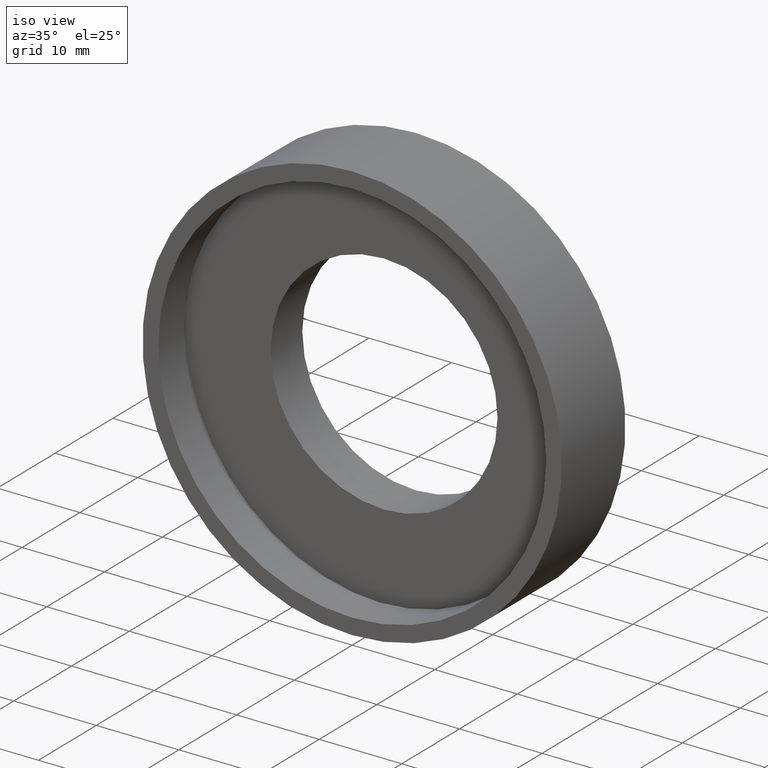
[diagram: clean part render]
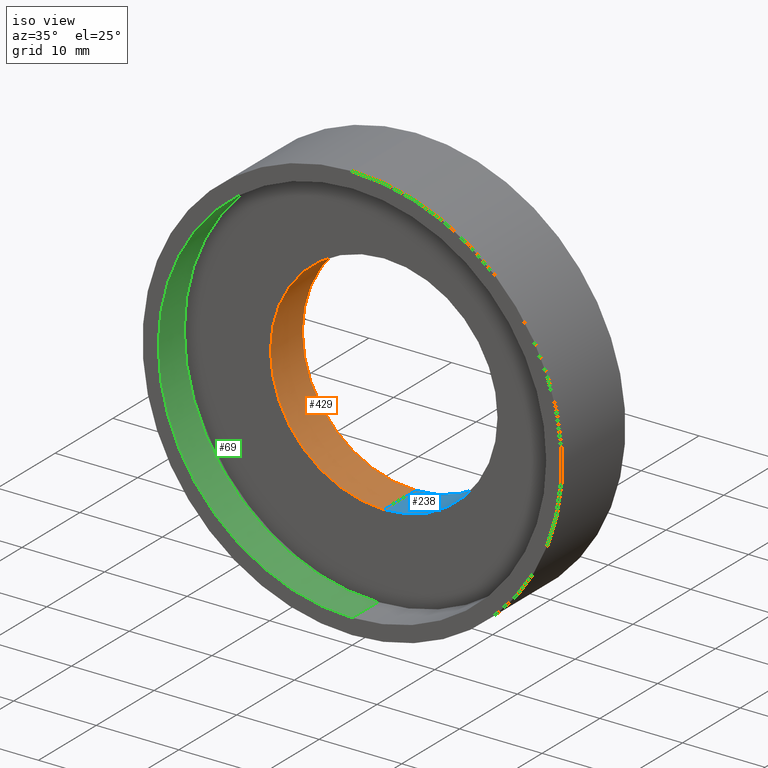
[diagram: same view with three faces highlighted in distinct colors, each labeled with its STEP entity id]
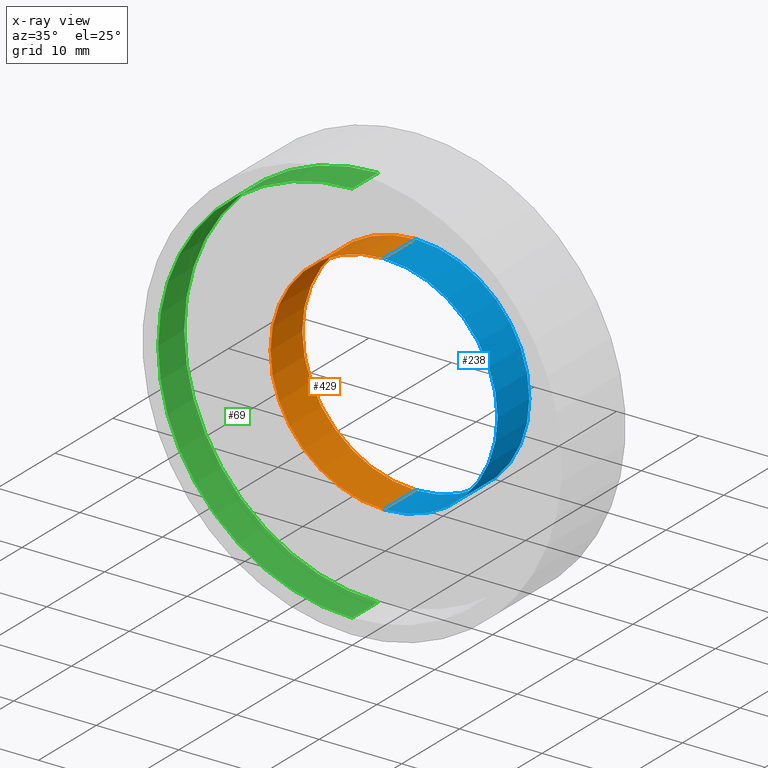
[diagram: x-ray of the same camera — body ghosted, the three highlighted faces saturated]
A machine part, iso view with three faces highlighted in distinct colors.
The next image is the same camera in x-ray (body ghosted, the three faces saturated) — at least one of them is partly hidden behind the body in this view.
Their STEP definitions:

[orange] entity #429 — the highlighted cylindrical surface (partial cylindrical patch) has radius 13.75 mm, axis along (-0, 1, -0).
#18 = DIRECTION ( 'NONE',  ( 0.0000000000000000000, 0.0000000000000000000, 1.000000000000000000 ) ) ;
#84 = VERTEX_POINT ( 'NONE', #353 ) ;
#96 = VERTEX_POINT ( 'NONE', #133 ) ;
#104 = DIRECTION ( 'NONE',  ( -0.0000000000000000000, 1.000000000000000000, -0.0000000000000000000 ) ) ;
#133 = CARTESIAN_POINT ( 'NONE',  ( 0.0000000000000000000, 5.499999999999998200, 13.75000000000000500 ) ) ;
#139 = AXIS2_PLACEMENT_3D ( 'NONE', #153, #379, #408 ) ;
#148 = AXIS2_PLACEMENT_3D ( 'NONE', #205, #349, #18 ) ;
#153 = CARTESIAN_POINT ( 'NONE',  ( 0.0000000000000000000, 5.499999999999998200, 0.0000000000000000000 ) ) ;
#196 = LINE ( 'NONE', #240, #201 ) ;
#201 = VECTOR ( 'NONE', #280, 1000.000000000000000 ) ;
#205 = CARTESIAN_POINT ( 'NONE',  ( 0.0000000000000000000, 60.02082041425541100, 0.0000000000000000000 ) ) ;
#224 = ORIENTED_EDGE ( 'NONE', *, *, #270, .T. ) ;
#231 = AXIS2_PLACEMENT_3D ( 'NONE', #428, #402, #404 ) ;
#232 = VERTEX_POINT ( 'NONE', #291 ) ;
#237 = ORIENTED_EDGE ( 'NONE', *, *, #262, .T. ) ;
#240 = CARTESIAN_POINT ( 'NONE',  ( 0.0000000000000000000, 60.02082041425541100, 13.75000000000000500 ) ) ;
#244 = CIRCLE ( 'NONE', #139, 13.75000000000000500 ) ;
#254 = ORIENTED_EDGE ( 'NONE', *, *, #409, .F. ) ;
#255 = CYLINDRICAL_SURFACE ( 'NONE', #148, 13.75000000000000500 ) ;
#261 = CARTESIAN_POINT ( 'NONE',  ( 0.0000000000000000000, 10.99999999999999600, 13.75000000000000700 ) ) ;
#262 = EDGE_CURVE ( 'NONE', #232, #84, #326, .T. ) ;
#267 = VECTOR ( 'NONE', #104, 1000.000000000000000 ) ;
#270 = EDGE_CURVE ( 'NONE', #84, #335, #356, .T. ) ;
#272 = FACE_OUTER_BOUND ( 'NONE', #415, .T. ) ;
#280 = DIRECTION ( 'NONE',  ( -0.0000000000000000000, 1.000000000000000000, -0.0000000000000000000 ) ) ;
#291 = CARTESIAN_POINT ( 'NONE',  ( 1.683889348827611400E-015, 5.499999999999998200, -13.75000000000000500 ) ) ;
#299 = CARTESIAN_POINT ( 'NONE',  ( 1.683889348827611400E-015, 60.02082041425541100, -13.75000000000000500 ) ) ;
#326 = LINE ( 'NONE', #299, #267 ) ;
#328 = ORIENTED_EDGE ( 'NONE', *, *, #366, .F. ) ;
#335 = VERTEX_POINT ( 'NONE', #261 ) ;
#349 = DIRECTION ( 'NONE',  ( -0.0000000000000000000, 1.000000000000000000, -0.0000000000000000000 ) ) ;
#353 = CARTESIAN_POINT ( 'NONE',  ( 1.683889348827611800E-015, 10.99999999999999600, -13.75000000000000900 ) ) ;
#356 = CIRCLE ( 'NONE', #231, 13.75000000000000700 ) ;
#366 = EDGE_CURVE ( 'NONE', #232, #96, #244, .T. ) ;
#379 = DIRECTION ( 'NONE',  ( -0.0000000000000000000, 1.000000000000000000, -0.0000000000000000000 ) ) ;
#402 = DIRECTION ( 'NONE',  ( -0.0000000000000000000, 1.000000000000000000, -0.0000000000000000000 ) ) ;
#404 = DIRECTION ( 'NONE',  ( 0.0000000000000000000, 0.0000000000000000000, 1.000000000000000000 ) ) ;
#408 = DIRECTION ( 'NONE',  ( 0.0000000000000000000, 0.0000000000000000000, 1.000000000000000000 ) ) ;
#409 = EDGE_CURVE ( 'NONE', #96, #335, #196, .T. ) ;
#415 = EDGE_LOOP ( 'NONE', ( #328, #237, #224, #254 ) ) ;
#428 = CARTESIAN_POINT ( 'NONE',  ( 0.0000000000000000000, 10.99999999999999600, 0.0000000000000000000 ) ) ;
#429 = ADVANCED_FACE ( 'NONE', ( #272 ), #255, .F. ) ;

[blue] entity #238 — the highlighted cylindrical surface (partial cylindrical patch) has radius 13.75 mm, axis along (-0, 1, -0).
#26 = DIRECTION ( 'NONE',  ( 0.0000000000000000000, 0.0000000000000000000, 1.000000000000000000 ) ) ;
#30 = ORIENTED_EDGE ( 'NONE', *, *, #173, .F. ) ;
#36 = CYLINDRICAL_SURFACE ( 'NONE', #208, 13.75000000000000500 ) ;
#40 = DIRECTION ( 'NONE',  ( 0.0000000000000000000, 0.0000000000000000000, 1.000000000000000000 ) ) ;
#51 = EDGE_LOOP ( 'NONE', ( #386, #30, #344, #117 ) ) ;
#81 = DIRECTION ( 'NONE',  ( -0.0000000000000000000, 1.000000000000000000, -0.0000000000000000000 ) ) ;
#84 = VERTEX_POINT ( 'NONE', #353 ) ;
#86 = CARTESIAN_POINT ( 'NONE',  ( 0.0000000000000000000, 5.499999999999998200, 0.0000000000000000000 ) ) ;
#96 = VERTEX_POINT ( 'NONE', #133 ) ;
#104 = DIRECTION ( 'NONE',  ( -0.0000000000000000000, 1.000000000000000000, -0.0000000000000000000 ) ) ;
#117 = ORIENTED_EDGE ( 'NONE', *, *, #185, .T. ) ;
#131 = FACE_OUTER_BOUND ( 'NONE', #51, .T. ) ;
#132 = CIRCLE ( 'NONE', #401, 13.75000000000000500 ) ;
#133 = CARTESIAN_POINT ( 'NONE',  ( 0.0000000000000000000, 5.499999999999998200, 13.75000000000000500 ) ) ;
#172 = DIRECTION ( 'NONE',  ( -0.0000000000000000000, 1.000000000000000000, -0.0000000000000000000 ) ) ;
#173 = EDGE_CURVE ( 'NONE', #96, #232, #132, .T. ) ;
#180 = AXIS2_PLACEMENT_3D ( 'NONE', #321, #183, #40 ) ;
#183 = DIRECTION ( 'NONE',  ( -0.0000000000000000000, 1.000000000000000000, -0.0000000000000000000 ) ) ;
#185 = EDGE_CURVE ( 'NONE', #335, #84, #387, .T. ) ;
#196 = LINE ( 'NONE', #240, #201 ) ;
#201 = VECTOR ( 'NONE', #280, 1000.000000000000000 ) ;
#208 = AXIS2_PLACEMENT_3D ( 'NONE', #304, #172, #26 ) ;
#232 = VERTEX_POINT ( 'NONE', #291 ) ;
#238 = ADVANCED_FACE ( 'NONE', ( #131 ), #36, .F. ) ;
#240 = CARTESIAN_POINT ( 'NONE',  ( 0.0000000000000000000, 60.02082041425541100, 13.75000000000000500 ) ) ;
#261 = CARTESIAN_POINT ( 'NONE',  ( 0.0000000000000000000, 10.99999999999999600, 13.75000000000000700 ) ) ;
#262 = EDGE_CURVE ( 'NONE', #232, #84, #326, .T. ) ;
#267 = VECTOR ( 'NONE', #104, 1000.000000000000000 ) ;
#280 = DIRECTION ( 'NONE',  ( -0.0000000000000000000, 1.000000000000000000, -0.0000000000000000000 ) ) ;
#291 = CARTESIAN_POINT ( 'NONE',  ( 1.683889348827611400E-015, 5.499999999999998200, -13.75000000000000500 ) ) ;
#299 = CARTESIAN_POINT ( 'NONE',  ( 1.683889348827611400E-015, 60.02082041425541100, -13.75000000000000500 ) ) ;
#304 = CARTESIAN_POINT ( 'NONE',  ( 0.0000000000000000000, 60.02082041425541100, 0.0000000000000000000 ) ) ;
#321 = CARTESIAN_POINT ( 'NONE',  ( 0.0000000000000000000, 10.99999999999999600, 0.0000000000000000000 ) ) ;
#326 = LINE ( 'NONE', #299, #267 ) ;
#335 = VERTEX_POINT ( 'NONE', #261 ) ;
#344 = ORIENTED_EDGE ( 'NONE', *, *, #409, .T. ) ;
#352 = DIRECTION ( 'NONE',  ( 0.0000000000000000000, 0.0000000000000000000, 1.000000000000000000 ) ) ;
#353 = CARTESIAN_POINT ( 'NONE',  ( 1.683889348827611800E-015, 10.99999999999999600, -13.75000000000000900 ) ) ;
#386 = ORIENTED_EDGE ( 'NONE', *, *, #262, .F. ) ;
#387 = CIRCLE ( 'NONE', #180, 13.75000000000000700 ) ;
#401 = AXIS2_PLACEMENT_3D ( 'NONE', #86, #81, #352 ) ;
#409 = EDGE_CURVE ( 'NONE', #96, #335, #196, .T. ) ;

[green] entity #69 — the highlighted cylindrical surface (partial cylindrical patch) has radius 23.5 mm, axis along (-0, 1, -0).
#6 = DIRECTION ( 'NONE',  ( 0.0000000000000000000, 0.0000000000000000000, 1.000000000000000000 ) ) ;
#19 = VERTEX_POINT ( 'NONE', #269 ) ;
#33 = CARTESIAN_POINT ( 'NONE',  ( 0.0000000000000000000, 60.02082041425541100, 23.50000000000000700 ) ) ;
#42 = LINE ( 'NONE', #33, #345 ) ;
#55 = LINE ( 'NONE', #311, #380 ) ;
#68 = VERTEX_POINT ( 'NONE', #93 ) ;
#69 = ADVANCED_FACE ( 'NONE', ( #212 ), #395, .F. ) ;
#85 = DIRECTION ( 'NONE',  ( 0.0000000000000000000, 0.0000000000000000000, 1.000000000000000000 ) ) ;
#88 = DIRECTION ( 'NONE',  ( -0.0000000000000000000, 1.000000000000000000, -0.0000000000000000000 ) ) ;
#89 = CIRCLE ( 'NONE', #371, 23.50000000000000700 ) ;
#91 = EDGE_CURVE ( 'NONE', #323, #19, #89, .T. ) ;
#93 = CARTESIAN_POINT ( 'NONE',  ( 2.877919977996281100E-015, 4.499999999999997300, -23.50000000000000700 ) ) ;
#110 = DIRECTION ( 'NONE',  ( -0.0000000000000000000, 1.000000000000000000, -0.0000000000000000000 ) ) ;
#111 = AXIS2_PLACEMENT_3D ( 'NONE', #360, #414, #364 ) ;
#112 = EDGE_LOOP ( 'NONE', ( #217, #377, #225, #168 ) ) ;
#116 = AXIS2_PLACEMENT_3D ( 'NONE', #432, #88, #85 ) ;
#165 = EDGE_CURVE ( 'NONE', #68, #329, #303, .T. ) ;
#168 = ORIENTED_EDGE ( 'NONE', *, *, #192, .F. ) ;
#192 = EDGE_CURVE ( 'NONE', #19, #329, #42, .T. ) ;
#197 = EDGE_CURVE ( 'NONE', #323, #68, #55, .T. ) ;
#212 = FACE_OUTER_BOUND ( 'NONE', #112, .T. ) ;
#217 = ORIENTED_EDGE ( 'NONE', *, *, #91, .F. ) ;
#218 = CARTESIAN_POINT ( 'NONE',  ( 2.877919977996281100E-015, 0.0000000000000000000, -23.50000000000000700 ) ) ;
#225 = ORIENTED_EDGE ( 'NONE', *, *, #165, .T. ) ;
#251 = DIRECTION ( 'NONE',  ( -0.0000000000000000000, 1.000000000000000000, -0.0000000000000000000 ) ) ;
#268 = CARTESIAN_POINT ( 'NONE',  ( 0.0000000000000000000, 4.499999999999997300, 23.50000000000000700 ) ) ;
#269 = CARTESIAN_POINT ( 'NONE',  ( 0.0000000000000000000, 0.0000000000000000000, 23.50000000000000700 ) ) ;
#286 = CARTESIAN_POINT ( 'NONE',  ( 0.0000000000000000000, 0.0000000000000000000, 0.0000000000000000000 ) ) ;
#293 = DIRECTION ( 'NONE',  ( -0.0000000000000000000, 1.000000000000000000, -0.0000000000000000000 ) ) ;
#303 = CIRCLE ( 'NONE', #111, 23.50000000000000700 ) ;
#311 = CARTESIAN_POINT ( 'NONE',  ( 2.877919977996281100E-015, 60.02082041425541100, -23.50000000000000700 ) ) ;
#323 = VERTEX_POINT ( 'NONE', #218 ) ;
#329 = VERTEX_POINT ( 'NONE', #268 ) ;
#345 = VECTOR ( 'NONE', #251, 1000.000000000000000 ) ;
#360 = CARTESIAN_POINT ( 'NONE',  ( 0.0000000000000000000, 4.499999999999997300, 0.0000000000000000000 ) ) ;
#364 = DIRECTION ( 'NONE',  ( 0.0000000000000000000, 0.0000000000000000000, 1.000000000000000000 ) ) ;
#371 = AXIS2_PLACEMENT_3D ( 'NONE', #286, #293, #6 ) ;
#377 = ORIENTED_EDGE ( 'NONE', *, *, #197, .T. ) ;
#380 = VECTOR ( 'NONE', #110, 1000.000000000000000 ) ;
#395 = CYLINDRICAL_SURFACE ( 'NONE', #116, 23.50000000000000700 ) ;
#414 = DIRECTION ( 'NONE',  ( -0.0000000000000000000, 1.000000000000000000, -0.0000000000000000000 ) ) ;
#432 = CARTESIAN_POINT ( 'NONE',  ( 0.0000000000000000000, 60.02082041425541100, 0.0000000000000000000 ) ) ;